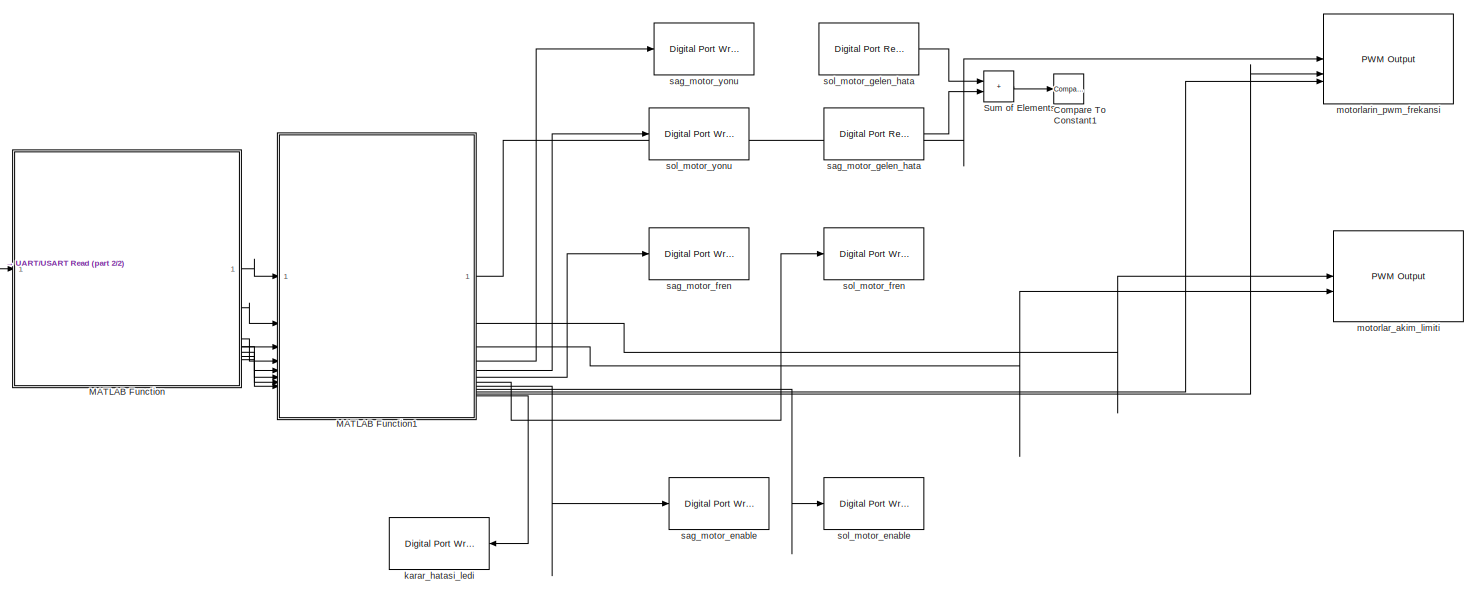
[diagram: root canvas - part 1/2, center side, full height]
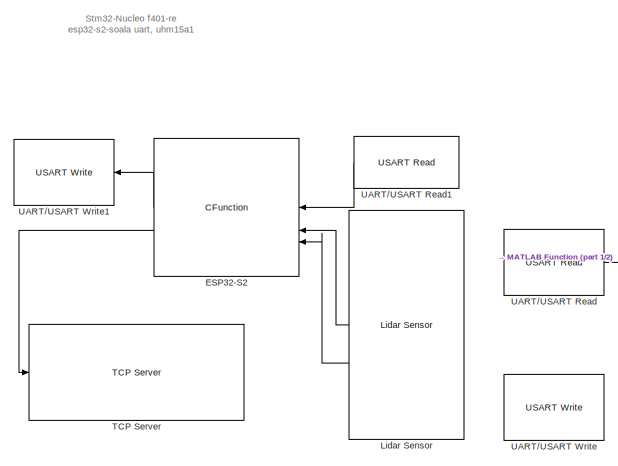
[diagram: root canvas - part 2/2, left side, full height]
MODEL slx_80bce2e3385a
KIND model
CONFIG AbsTol = auto
CONFIG EnableMultiTasking = on
CONFIG FixedStep = auto
CONFIG MaxStep = auto
CONFIG MinStep = auto
CONFIG RelTol = 1e-3
CONFIG SampleTimeConstraint = Unconstrained
CONFIG SolverName = FixedStepAuto
CONFIG StartTime = 0.0
CONFIG StopTime = 45
BLOCK [Reference] Compare To Constant1  REF=simulink/Logic and Bit
Operations/Compare
To Constant
  SourceBlock = simulink/Logic and Bit\nOperations/Compare\nTo Constant
  SourceType = Compare To Constant
BLOCK [CFunction] ESP32-S2
  NameLocation = top
  StartCode = function [motor1_speed, motor2_speed, duration] = simulateESP32Block()\n%#codegen\n\n% Define the function to simulate ESP32 behavior\ncoder.inline('never');\ncoder.extrinsic('rand');\n\n% Initialize the motor control data structure\ndata.motor1_speed = uint8(0);\ndata.motor2_speed = uint8(0);\ndata.duration = uint8(0);\n\n% Call the function to simulate ESP32 behavior\ndata = simulateESP32();\n\n% Extract the f...<+487ch>
BLOCK [Reference] Lidar Sensor  REF=lidarlib/Lidar Sensor
  NameLocation = top
  SourceBlock = lidarlib/Lidar Sensor
  SourceType = lidarsimulink.internal.LidarSensorBlock
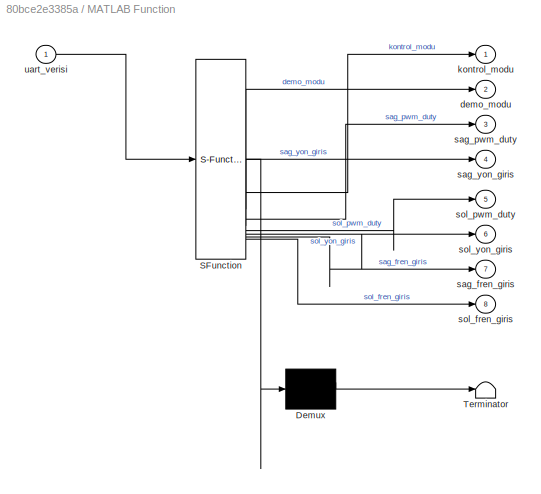
BLOCK [SubSystem] MATLAB Function
  ErrorFcn = Stateflow.Translate.translate
  PermitHierarchicalResolution = ExplicitOnly
  SFBlockType = MATLAB Function
  TreatAsAtomicUnit = on
BLOCK [Demux] MATLAB Function/ Demux 
  Outputs = 1
BLOCK [S-Function] MATLAB Function/ SFunction 
  EnableBusSupport = on
  FunctionName = sf_sfun
  PortCounts = [1 9]
  SFcnIsStateOwnerBlock = off
  SFunctionDeploymentMode = off
  Tag = Stateflow S-Function 2
BLOCK [Terminator] MATLAB Function/ Terminator 
BLOCK [Outport] MATLAB Function/demo_modu
  Port = 2
BLOCK [Outport] MATLAB Function/kontrol_modu
BLOCK [Outport] MATLAB Function/sag_fren_giris
  Port = 7
BLOCK [Outport] MATLAB Function/sag_pwm_duty
  Port = 3
BLOCK [Outport] MATLAB Function/sag_yon_giris
  Port = 4
BLOCK [Outport] MATLAB Function/sol_fren_giris
  Port = 8
BLOCK [Outport] MATLAB Function/sol_pwm_duty
  Port = 5
BLOCK [Outport] MATLAB Function/sol_yon_giris
  Port = 6
BLOCK [Inport] MATLAB Function/uart_verisi
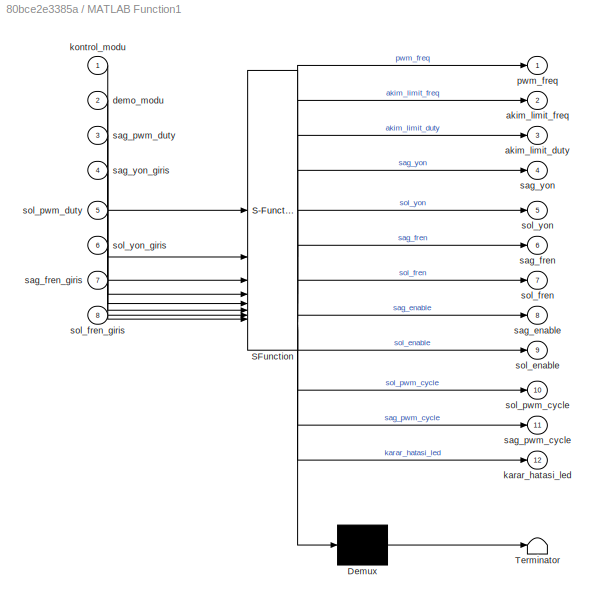
BLOCK [SubSystem] MATLAB Function1
  ErrorFcn = Stateflow.Translate.translate
  PermitHierarchicalResolution = ExplicitOnly
  SFBlockType = MATLAB Function
  TreatAsAtomicUnit = on
BLOCK [Demux] MATLAB Function1/ Demux 
  Outputs = 1
BLOCK [S-Function] MATLAB Function1/ SFunction 
  EnableBusSupport = on
  FunctionName = sf_sfun
  PortCounts = [8 13]
  SFcnIsStateOwnerBlock = off
  SFunctionDeploymentMode = off
  Tag = Stateflow S-Function 1
BLOCK [Terminator] MATLAB Function1/ Terminator 
BLOCK [Outport] MATLAB Function1/akim_limit_duty
  Port = 3
BLOCK [Outport] MATLAB Function1/akim_limit_freq
  Port = 2
BLOCK [Inport] MATLAB Function1/demo_modu
  Port = 2
BLOCK [Outport] MATLAB Function1/karar_hatasi_led
  Port = 12
BLOCK [Inport] MATLAB Function1/kontrol_modu
BLOCK [Outport] MATLAB Function1/pwm_freq
BLOCK [Outport] MATLAB Function1/sag_enable
  Port = 8
BLOCK [Outport] MATLAB Function1/sag_fren
  Port = 6
BLOCK [Inport] MATLAB Function1/sag_fren_giris
  Port = 7
BLOCK [Outport] MATLAB Function1/sag_pwm_cycle
  Port = 11
BLOCK [Inport] MATLAB Function1/sag_pwm_duty
  Port = 3
BLOCK [Outport] MATLAB Function1/sag_yon
  Port = 4
BLOCK [Inport] MATLAB Function1/sag_yon_giris
  Port = 4
BLOCK [Outport] MATLAB Function1/sol_enable
  Port = 9
BLOCK [Outport] MATLAB Function1/sol_fren
  Port = 7
BLOCK [Inport] MATLAB Function1/sol_fren_giris
  Port = 8
BLOCK [Outport] MATLAB Function1/sol_pwm_cycle
  Port = 10
BLOCK [Inport] MATLAB Function1/sol_pwm_duty
  Port = 5
BLOCK [Outport] MATLAB Function1/sol_yon
  Port = 5
BLOCK [Inport] MATLAB Function1/sol_yon_giris
  Port = 6
BLOCK [Sum] Sum of Elements
  IconShape = rectangular
  OutMin = 2
BLOCK [Reference] TCP Server  REF=slrealtimeiplib/TCP Server
  Priority = -1
  SourceBlock = slrealtimeiplib/TCP Server
  SourceType = slrealtimetcpserver
BLOCK [Reference] UART//USART Read  REF=stm32blockslib/UART//USART Read
  LibrarySourceBlock = stm32f4xxblockslib/UART//USART Read
  Priority = 2
  SourceBlock = stm32blockslib/UART//USART Read
  SourceType = stm32cube.blocks.UARTRead
BLOCK [Reference] UART//USART Read1  REF=stm32blockslib/UART//USART Read
  LibrarySourceBlock = stm32f4xxblockslib/UART//USART Read
  NameLocation = top
  Priority = 2
  SourceBlock = stm32blockslib/UART//USART Read
  SourceType = stm32cube.blocks.UARTRead
BLOCK [Reference] UART//USART Write  REF=stm32blockslib/UART//USART Write
  LibrarySourceBlock = stm32f4xxblockslib/UART//USART Write
  NameLocation = top
  Priority = 1
  SourceBlock = stm32blockslib/UART//USART Write
  SourceType = stm32cube.blocks.UARTWrite
BLOCK [Reference] UART//USART Write1  REF=stm32blockslib/UART//USART Write
  LibrarySourceBlock = stm32f4xxblockslib/UART//USART Write
  NameLocation = top
  Priority = 1
  SourceBlock = stm32blockslib/UART//USART Write
  SourceType = stm32cube.blocks.UARTWrite
BLOCK [Reference] karar_hatasi_ledi  REF=stm32f4xxblockslib/Digital Port Write
  AttributesFormatString = %<PinNumber>
  SourceBlock = stm32f4xxblockslib/Digital Port Write
  SourceType = stm32cube.blocks.DigitalPortWrite
BLOCK [Reference] motorlar_akim_limiti  REF=stm32f4xxblockslib/PWM Output
  SourceBlock = stm32f4xxblockslib/PWM Output
  SourceType = stm32cube.blocks.PWMOutput
BLOCK [Reference] motorlarin_pwm_frekansi  REF=stm32f4xxblockslib/PWM Output
  SourceBlock = stm32f4xxblockslib/PWM Output
  SourceType = stm32cube.blocks.PWMOutput
BLOCK [Reference] sag_motor_enable  REF=stm32f4xxblockslib/Digital Port Write
  AttributesFormatString = %<PinNumber>
  SourceBlock = stm32f4xxblockslib/Digital Port Write
  SourceType = stm32cube.blocks.DigitalPortWrite
BLOCK [Reference] sag_motor_fren  REF=stm32f4xxblockslib/Digital Port Write
  AttributesFormatString = %<PinNumber>
  SourceBlock = stm32f4xxblockslib/Digital Port Write
  SourceType = stm32cube.blocks.DigitalPortWrite
BLOCK [Reference] sag_motor_gelen_hata  REF=stm32f4xxblockslib/Digital Port Read
  AttributesFormatString = %<PinNumber>
  SourceBlock = stm32f4xxblockslib/Digital Port Read
  SourceType = stm32cube.blocks.DigitalPortRead
BLOCK [Reference] sag_motor_yonu  REF=stm32f4xxblockslib/Digital Port Write
  AttributesFormatString = %<PinNumber>
  SourceBlock = stm32f4xxblockslib/Digital Port Write
  SourceType = stm32cube.blocks.DigitalPortWrite
BLOCK [Reference] sol_motor_enable  REF=stm32f4xxblockslib/Digital Port Write
  AttributesFormatString = %<PinNumber>
  SourceBlock = stm32f4xxblockslib/Digital Port Write
  SourceType = stm32cube.blocks.DigitalPortWrite
BLOCK [Reference] sol_motor_fren  REF=stm32f4xxblockslib/Digital Port Write
  AttributesFormatString = %<PinNumber>
  SourceBlock = stm32f4xxblockslib/Digital Port Write
  SourceType = stm32cube.blocks.DigitalPortWrite
BLOCK [Reference] sol_motor_gelen_hata  REF=stm32f4xxblockslib/Digital Port Read
  AttributesFormatString = %<PinNumber>
  SourceBlock = stm32f4xxblockslib/Digital Port Read
  SourceType = stm32cube.blocks.DigitalPortRead
BLOCK [Reference] sol_motor_yonu  REF=stm32f4xxblockslib/Digital Port Write
  AttributesFormatString = %<PinNumber>
  SourceBlock = stm32f4xxblockslib/Digital Port Write
  SourceType = stm32cube.blocks.DigitalPortWrite
ANNOTATION (root): Stm32-Nucleo f401-re esp32-s2-soala uart, uhm15a1
LINE ESP32-S2:1 -> UART//USART Write1:1
LINE ESP32-S2:2 -> TCP Server:1
LINE Lidar Sensor:1 -> ESP32-S2:2
LINE Lidar Sensor:2 -> ESP32-S2:3
LINE MATLAB Function1:1 -> motorlarin_pwm_frekansi:1
LINE MATLAB Function1:10 -> motorlarin_pwm_frekansi:3
LINE MATLAB Function1:11 -> motorlarin_pwm_frekansi:2
LINE MATLAB Function1:12 -> karar_hatasi_ledi:1
LINE MATLAB Function1:2 -> motorlar_akim_limiti:1
LINE MATLAB Function1:3 -> motorlar_akim_limiti:2
LINE MATLAB Function1:4 -> sag_motor_yonu:1
LINE MATLAB Function1:5 -> sol_motor_yonu:1
LINE MATLAB Function1:6 -> sag_motor_fren:1
LINE MATLAB Function1:7 -> sol_motor_fren:1
LINE MATLAB Function1:8 -> sag_motor_enable:1
LINE MATLAB Function1:9 -> sol_motor_enable:1
LINE MATLAB Function:1 -> MATLAB Function1:1
LINE MATLAB Function:2 -> MATLAB Function1:2
LINE MATLAB Function:3 -> MATLAB Function1:3
LINE MATLAB Function:4 -> MATLAB Function1:4
LINE MATLAB Function:5 -> MATLAB Function1:5
LINE MATLAB Function:6 -> MATLAB Function1:6
LINE MATLAB Function:7 -> MATLAB Function1:7
LINE MATLAB Function:8 -> MATLAB Function1:8
LINE Sum of Elements:1 -> Compare To Constant1:1
LINE UART//USART Read1:1 -> ESP32-S2:1
LINE UART//USART Read:1 -> MATLAB Function:1
LINE sag_motor_gelen_hata:1 -> Sum of Elements:2
LINE sol_motor_gelen_hata:1 -> Sum of Elements:1
CHART MATLAB Function1 states=1 transitions=1
  STATE_LABEL 'eML_blk_kernel()'
  STATE_LABEL 'SCRIPT:\nfunction [pwm_freq, akim_limit_freq, akim_limit_duty, sag_yon, sol_yon, sag_fren, sol_fren, sag_enable, sol_enable, sol_pwm_cycle, sag_pwm_cycle, karar_hatasi_led] = motor_secici(kontrol_modu, demo_modu, sag_pwm_duty, sag_yon_giris, sol_pwm_duty, sol_yon_giris, sag_fren_giris, sol_fren_giris)\n%#codegen\n\n% Sabit PWM frekansı\npwm_freq = 13.5e3;  % 13.5 kHz\nakim_limit_freq = 20e3; % 20 kHz\nak...<+2320ch>'
CHART MATLAB Function states=1 transitions=1
  STATE_LABEL 'eML_blk_kernel()'
  STATE_LABEL 'SCRIPT:\nfunction [kontrol_modu, demo_modu, sag_pwm_duty, sag_yon_giris, sol_pwm_duty, sol_yon_giris, sag_fren_giris, sol_fren_giris] = process_uart_data(uart_verisi)\n    % UART verisini işleyerek kontrol sinyallerini çıkartır\n    % Başlık çıkarma\n    baslik = uart_verisi(1);\n    \n    % Varsayılan değerler\n    kontrol_modu = uint8(2); % Başlangıç değeri olarak demo modu\n    demo_modu = uint8(1); % ...<+1072ch>'
CHART  states=0 transitions=0
CHART  states=0 transitions=0
